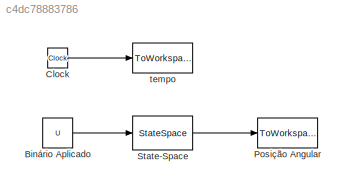
MODEL slx_c4dc78883786
KIND model
CONFIG AbsTol = auto
CONFIG FixedStep = auto
CONFIG MaxStep = auto
CONFIG MinStep = auto
CONFIG RelTol = 1e-3
CONFIG SampleTimeConstraint = Unconstrained
CONFIG Solver = ode45
CONFIG SolverMode = Auto
CONFIG SolverName = ode45
CONFIG StartTime = 0.0
CONFIG StopTime = 10.0
BLOCK [Constant] Binário Aplicado
  Value = U
BLOCK [Clock] Clock
BLOCK [ToWorkspace] Posição Angular
  FixptAsFi = on
  MaxDataPoints = inf
  Ports = [1]
  SampleTime = 0.001
  Save2DSignal = 3-D array (concatenate along third dimension)
  VariableName = Y
BLOCK [StateSpace] State-Space
  A = A
  B = B
  C = C
  ContinuousStateAttributes = 'Modelo'
  D = D
  Ports = [1, 1]
  X0 = x0
BLOCK [ToWorkspace] tempo
  FixptAsFi = on
  MaxDataPoints = inf
  Ports = [1]
  SampleTime = 0.001
  Save2DSignal = 3-D array (concatenate along third dimension)
  VariableName = t
LINE Binário Aplicado:1 -> State-Space:1
LINE Clock:1 -> tempo:1
LINE State-Space:1 -> Posição Angular:1
